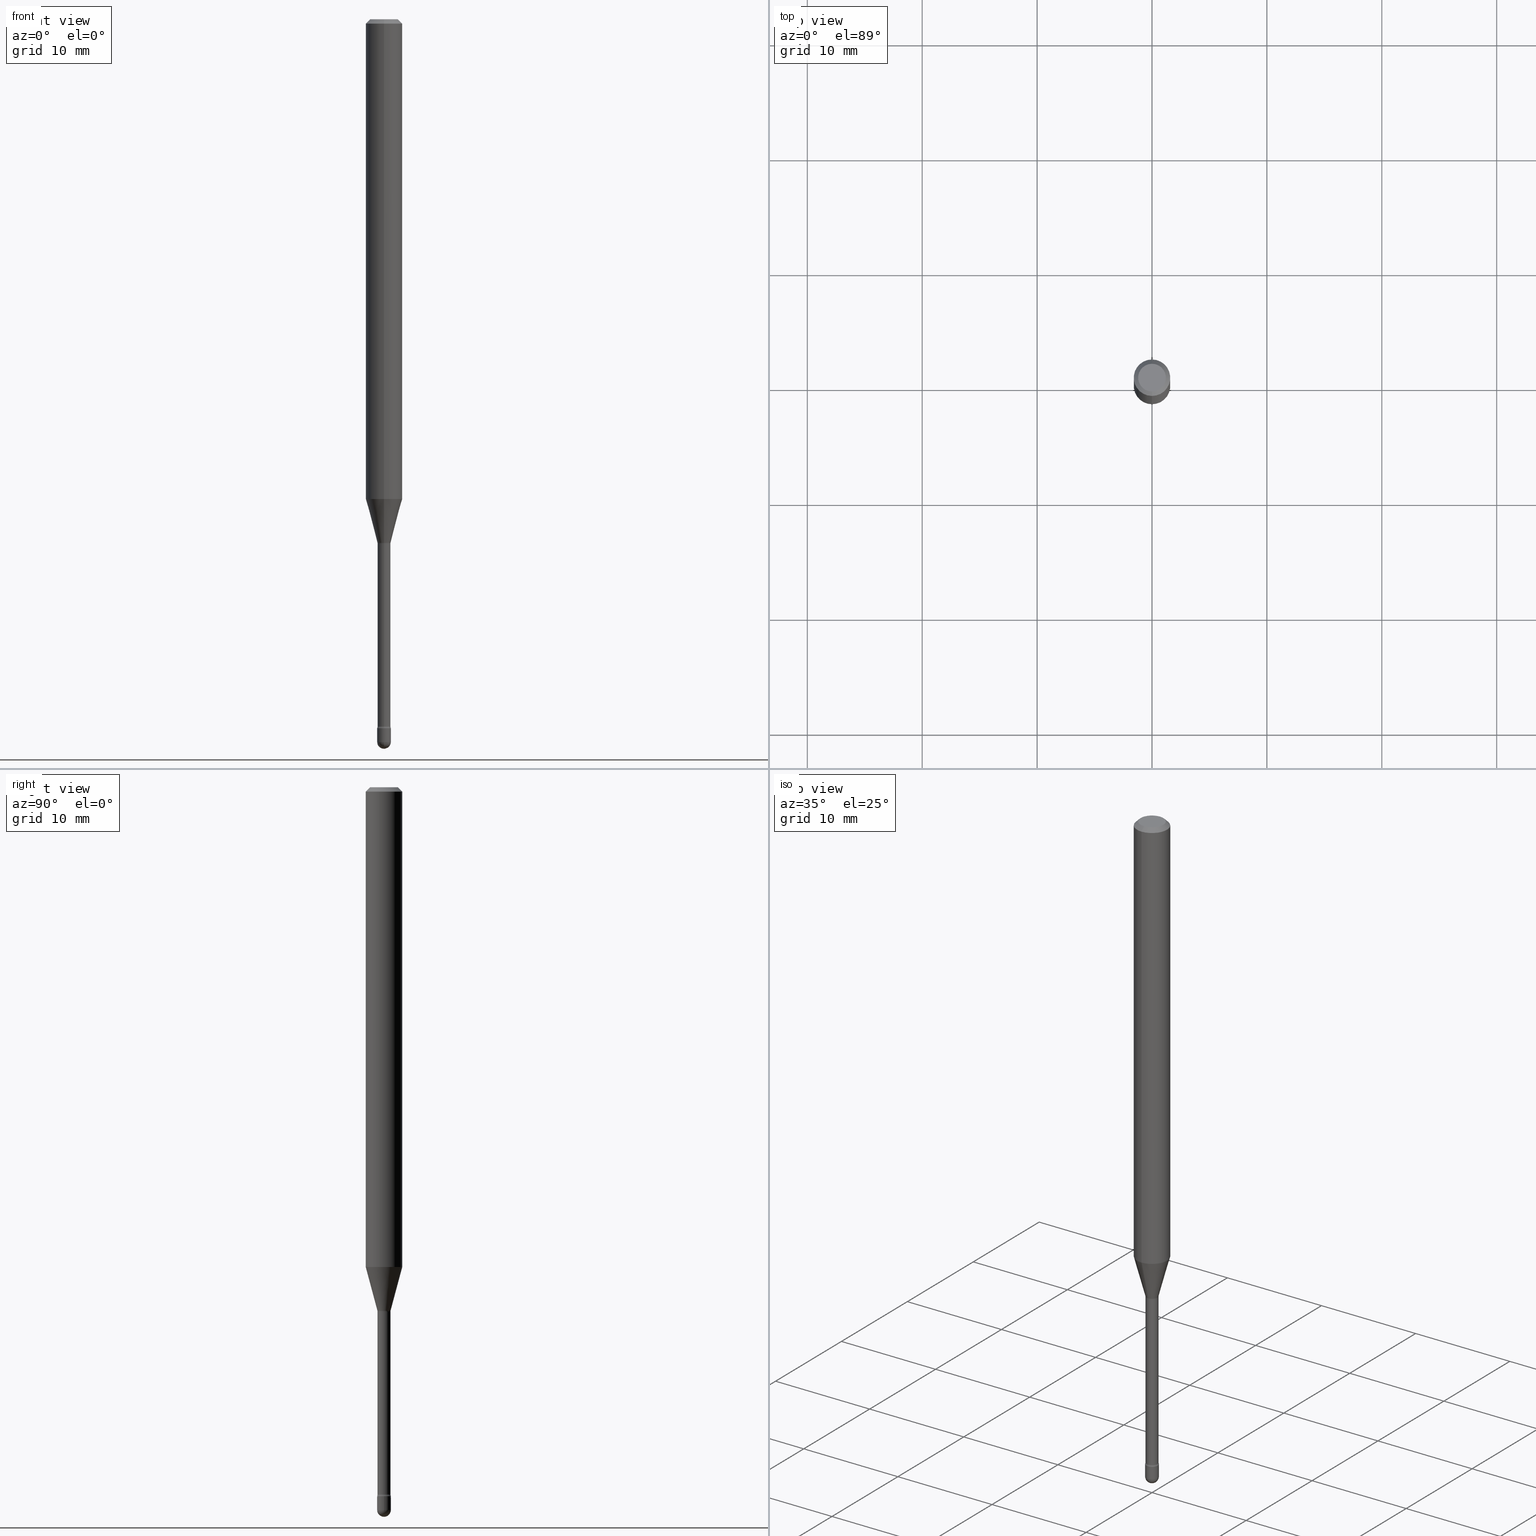
[diagram: canonical four-view strip — front | top / right | iso, engineering-drawing reading convention]
A machine part, canonical four-view strip (front | top / right | iso — engineering-drawing reading convention). The complete STEP part file that produces these views, byte-faithful:
ISO-10303-21;
HEADER;
FILE_DESCRIPTION (( 'STEP AP203' ),
    '1' );
FILE_NAME ('09470.STEP',
    '2024-04-09T23:32:47',
    ( '' ),
    ( '' ),
    'SwSTEP 2.0',
    'SolidWorks 2023',
    '' );
FILE_SCHEMA (( 'CONFIG_CONTROL_DESIGN' ));
ENDSEC;

DATA;
#1 = MANIFOLD_SOLID_BREP ( 'Body-Move/Copy2[2]', #435 ) ;
#2 = CARTESIAN_POINT ( 'NONE',  ( 4.394445788243915811E-29, -6.274103936801524027E-15, -1.796974787463811118 ) ) ;
#3 = DIRECTION ( 'NONE',  ( -2.445456806742390166E-29, 3.491498522728124281E-15, 1.000000000000000000 ) ) ;
#4 = MANIFOLD_SOLID_BREP ( 'Body-Move/Copy2[1]', #192 ) ;
#5 = AXIS2_PLACEMENT_3D ( 'NONE', #197, #108, #373 ) ;
#6 = ADVANCED_FACE ( 'NONE', ( #387 ), #130, .T. ) ;
#7 = DIRECTION ( 'NONE',  ( 1.000000000000000000, -6.982962677686265922E-15, 4.876176775795935793E-29 ) ) ;
#8 = ORIENTED_EDGE ( 'NONE', *, *, #545, .F. ) ;
#9 = FACE_OUTER_BOUND ( 'NONE', #105, .T. ) ;
#10 = CC_DESIGN_DATE_AND_TIME_ASSIGNMENT ( #257, #252, ( #256 ) ) ;
#11 = ORIENTED_EDGE ( 'NONE', *, *, #80, .F. ) ;
#12 = CARTESIAN_POINT ( 'NONE',  ( 4.440892098500625669E-16, 0.06250000000000000000, 2.598547412207382957E-16 ) ) ;
#13 = TOROIDAL_SURFACE ( 'NONE', #546, 0.03710000000000006348, 0.01499999999999999424 ) ;
#14 = VECTOR ( 'NONE', #210, 39.37007874015747433 ) ;
#15 = CARTESIAN_POINT ( 'NONE',  ( -1.169113584055446105E-44, 1.669184350826100908E-30, 4.780733988912460139E-16 ) ) ;
#16 = EDGE_CURVE ( 'NONE', #525, #313, #537, .T. ) ;
#17 = FACE_OUTER_BOUND ( 'NONE', #524, .T. ) ;
#18 = ORIENTED_EDGE ( 'NONE', *, *, #150, .T. ) ;
#19 = DIRECTION ( 'NONE',  ( -2.445456806742390166E-29, 3.491498522728124281E-15, 1.000000000000000000 ) ) ;
#20 = PRODUCT_DEFINITION_SHAPE ( 'NONE', 'NONE',  #415 ) ;
#21 =( CONVERSION_BASED_UNIT ( 'INCH', #534 ) LENGTH_UNIT ( ) NAMED_UNIT ( #470 ) );
#22 = EDGE_CURVE ( 'NONE', #265, #377, #442, .T. ) ;
#23 = LINE ( 'NONE', #370, #14 ) ;
#24 = FACE_OUTER_BOUND ( 'NONE', #421, .T. ) ;
#25 = AXIS2_PLACEMENT_3D ( 'NONE', #216, #503, #200 ) ;
#26 = DIRECTION ( 'NONE',  ( -2.445456806742390166E-29, 3.491498522728124281E-15, 1.000000000000000000 ) ) ;
#27 = ORIENTED_EDGE ( 'NONE', *, *, #199, .F. ) ;
#28 = ORIENTED_EDGE ( 'NONE', *, *, #352, .F. ) ;
#29 = DIRECTION ( 'NONE',  ( 2.445456806742390166E-29, -3.491498522728124281E-15, -1.000000000000000000 ) ) ;
#30 = ORIENTED_EDGE ( 'NONE', *, *, #327, .T. ) ;
#31 = AXIS2_PLACEMENT_3D ( 'NONE', #423, #26, #550 ) ;
#32 = ORIENTED_EDGE ( 'NONE', *, *, #181, .T. ) ;
#33 = FACE_OUTER_BOUND ( 'NONE', #338, .T. ) ;
#34 = FACE_OUTER_BOUND ( 'NONE', #434, .T. ) ;
#35 = AXIS2_PLACEMENT_3D ( 'NONE', #40, #381, #469 ) ;
#36 = CARTESIAN_POINT ( 'NONE',  ( 1.570299446029823742E-16, 0.02210000000000003628, 4.009112815389543820E-16 ) ) ;
#37 = CIRCLE ( 'NONE', #145, 0.02350000000000000352 ) ;
#38 = DIRECTION ( 'NONE',  ( 6.982962677686265922E-15, 1.000000000000000000, -3.491498522728124281E-15 ) ) ;
#39 = LOCAL_TIME ( 19, 32, 47.00000000000000000, #137 ) ;
#40 = CARTESIAN_POINT ( 'NONE',  ( 4.394424225547836862E-29, -6.274134815809582677E-15, -1.796974787463811118 ) ) ;
#41 = DIRECTION ( 'NONE',  ( -2.445456806742389886E-29, 3.491498522728124281E-15, 1.000000000000000000 ) ) ;
#42 = ORIENTED_EDGE ( 'NONE', *, *, #69, .F. ) ;
#43 = DIRECTION ( 'NONE',  ( 1.000000000000000000, -6.982962677686265922E-15, 4.876176775795935793E-29 ) ) ;
#44 = DIRECTION ( 'NONE',  ( -6.982962677686266711E-15, -1.000000000000000000, 3.491498522728124676E-15 ) ) ;
#45 = ADVANCED_FACE ( 'NONE', ( #34 ), #477, .F. ) ;
#46 = PERSON_AND_ORGANIZATION ( #382, #324 ) ;
#47 = LINE ( 'NONE', #483, #320 ) ;
#48 = DIRECTION ( 'NONE',  ( -2.445456806742390166E-29, 3.491498522728124281E-15, 1.000000000000000000 ) ) ;
#49 = ORIENTED_EDGE ( 'NONE', *, *, #486, .T. ) ;
#50 = DIRECTION ( 'NONE',  ( -2.445456806742390166E-29, 3.491498522728124281E-15, 1.000000000000000000 ) ) ;
#51 = EDGE_CURVE ( 'NONE', #173, #335, #311, .T. ) ;
#52 = CONICAL_SURFACE ( 'NONE', #394, 0.06250000000000000000, 0.7853981633974483900 ) ;
#53 = CONICAL_SURFACE ( 'NONE', #148, 0.02261111260566398690, 0.2617993877991501295 ) ;
#54 = FACE_OUTER_BOUND ( 'NONE', #390, .T. ) ;
#55 = EDGE_CURVE ( 'NONE', #392, #259, #240, .T. ) ;
#56 = ORIENTED_EDGE ( 'NONE', *, *, #301, .F. ) ;
#57 = CARTESIAN_POINT ( 'NONE',  ( -1.169113584055446105E-44, 1.669184350826100908E-30, 4.780733988912460139E-16 ) ) ;
#58 = EDGE_CURVE ( 'NONE', #561, #365, #360, .T. ) ;
#59 = DIRECTION ( 'NONE',  ( 1.000000000000000000, -6.982962677686269866E-15, 0.000000000000000000 ) ) ;
#60 = FACE_OUTER_BOUND ( 'NONE', #244, .T. ) ;
#61 = ORIENTED_EDGE ( 'NONE', *, *, #58, .T. ) ;
#62 = AXIS2_PLACEMENT_3D ( 'NONE', #83, #261, #551 ) ;
#63 = CARTESIAN_POINT ( 'NONE',  ( 6.056203498517491033E-29, -8.646653535645050331E-15, -2.476500000000000146 ) ) ;
#64 = FACE_OUTER_BOUND ( 'NONE', #213, .T. ) ;
#65 = FACE_OUTER_BOUND ( 'NONE', #344, .T. ) ;
#66 = AXIS2_PLACEMENT_3D ( 'NONE', #231, #314, #353 ) ;
#67 = ORIENTED_EDGE ( 'NONE', *, *, #511, .F. ) ;
#68 = ORIENTED_EDGE ( 'NONE', *, *, #406, .T. ) ;
#69 = EDGE_CURVE ( 'NONE', #259, #392, #255, .T. ) ;
#70 = DIRECTION ( 'NONE',  ( -2.445456806742390166E-29, 3.491498522728124281E-15, 1.000000000000000000 ) ) ;
#71 = DIRECTION ( 'NONE',  ( -2.445456806742390166E-29, 3.491498522728124281E-15, 1.000000000000000000 ) ) ;
#72 = DIRECTION ( 'NONE',  ( -6.982962677686265922E-15, -1.000000000000000000, 3.491498522728123492E-15 ) ) ;
#73 = PERSON_AND_ORGANIZATION_ROLE ( 'classification_officer' ) ;
#74 = ORIENTED_EDGE ( 'NONE', *, *, #543, .F. ) ;
#75 = AXIS2_PLACEMENT_3D ( 'NONE', #226, #560, #123 ) ;
#76 = MECHANICAL_CONTEXT ( 'NONE', #182, 'mechanical' ) ;
#77 = CARTESIAN_POINT ( 'NONE',  ( 1.620037437533623579E-16, 0.02209999999999160900, -2.422672283192177645 ) ) ;
#78 = COORDINATED_UNIVERSAL_TIME_OFFSET ( 5, 0, .BEHIND. ) ;
#79 = EDGE_LOOP ( 'NONE', ( #168, #163, #91, #334 ) ) ;
#80 = EDGE_CURVE ( 'NONE', #392, #419, #125, .T. ) ;
#81 = CARTESIAN_POINT ( 'NONE',  ( 1.570299446030415881E-16, 0.02209999999999372536, -1.796974787463811118 ) ) ;
#82 = APPROVAL_STATUS ( 'not_yet_approved' ) ;
#83 = CARTESIAN_POINT ( 'NONE',  ( -2.590679153421016779E-16, -0.03710000000000852199, -2.422672283192177645 ) ) ;
#84 = DIRECTION ( 'NONE',  ( 1.000000000000000000, -7.105427357601001070E-15, 4.926315718983979931E-29 ) ) ;
#85 = VECTOR ( 'NONE', #274, 39.37007874015748143 ) ;
#86 = CC_DESIGN_PERSON_AND_ORGANIZATION_ASSIGNMENT ( #124, #73, ( #256 ) ) ;
#87 = DIRECTION ( 'NONE',  ( -2.445456806742390166E-29, 3.491498522728124281E-15, 1.000000000000000000 ) ) ;
#88 = CIRCLE ( 'NONE', #248, 0.02350000000000000352 ) ;
#89 = APPROVAL_ROLE ( '' ) ;
#90 = CARTESIAN_POINT ( 'NONE',  ( 5.940014583577266287E-29, -8.480849911706614347E-15, -2.429000000000000270 ) ) ;
#91 = ORIENTED_EDGE ( 'NONE', *, *, #189, .T. ) ;
#92 = LINE ( 'NONE', #522, #528 ) ;
#93 = EDGE_CURVE ( 'NONE', #504, #194, #92, .T. ) ;
#94 = ORIENTED_EDGE ( 'NONE', *, *, #51, .T. ) ;
#95 = APPROVAL ( #391, 'UNSPECIFIED' ) ;
#96 = DIRECTION ( 'NONE',  ( -2.445468806185136877E-29, 3.491481338843145188E-15, 1.000000000000000000 ) ) ;
#97 = CIRCLE ( 'NONE', #333, 0.02210000000000007098 ) ;
#98 = ORIENTED_EDGE ( 'NONE', *, *, #473, .T. ) ;
#99 = AXIS2_PLACEMENT_3D ( 'NONE', #2, #221, #554 ) ;
#100 = DIRECTION ( 'NONE',  ( -6.982962677686265922E-15, -1.000000000000000000, 0.000000000000000000 ) ) ;
#101 = ADVANCED_FACE ( 'NONE', ( #179 ), #398, .T. ) ;
#102 = DIRECTION ( 'NONE',  ( 1.000000000000000000, -6.982962677686269866E-15, 0.000000000000000000 ) ) ;
#103 = PERSON_AND_ORGANIZATION_ROLE ( 'creator' ) ;
#104 = CYLINDRICAL_SURFACE ( 'NONE', #460, 0.02350000000000000352 ) ;
#105 = EDGE_LOOP ( 'NONE', ( #444, #119, #404, #480 ) ) ;
#106 = CARTESIAN_POINT ( 'NONE',  ( 4.384930263614428569E-29, -6.260579821105140971E-15, -1.793092501787273196 ) ) ;
#107 = AXIS2_PLACEMENT_3D ( 'NONE', #188, #310, #438 ) ;
#108 = DIRECTION ( 'NONE',  ( 0.000000000000000000, 0.000000000000000000, 1.000000000000000000 ) ) ;
#109 = DIRECTION ( 'NONE',  ( -2.445456806742389886E-29, 3.491498522728124281E-15, 1.000000000000000000 ) ) ;
#110 = CARTESIAN_POINT ( 'NONE',  ( 3.668185210113605428E-31, -5.237247784092215166E-17, -0.01500000000000008271 ) ) ;
#111 = ORIENTED_EDGE ( 'NONE', *, *, #150, .F. ) ;
#112 = CARTESIAN_POINT ( 'NONE',  ( -0.02350000000000000699, -8.396753310943903641E-15, -2.476500000000000590 ) ) ;
#113 = DIRECTION ( 'NONE',  ( -6.982962677686265922E-15, -1.000000000000000000, 3.491498522728124676E-15 ) ) ;
#114 =( NAMED_UNIT ( * ) PLANE_ANGLE_UNIT ( ) SI_UNIT ( $, .RADIAN. ) );
#115 = CARTESIAN_POINT ( 'NONE',  ( 6.056203498517492154E-29, -8.646653535645053486E-15, -2.476500000000000590 ) ) ;
#116 = ORIENTED_EDGE ( 'NONE', *, *, #327, .F. ) ;
#117 = AXIS2_PLACEMENT_3D ( 'NONE', #342, #557, #297 ) ;
#118 = ORIENTED_EDGE ( 'NONE', *, *, #481, .T. ) ;
#119 = ORIENTED_EDGE ( 'NONE', *, *, #228, .F. ) ;
#120 = EDGE_CURVE ( 'NONE', #525, #265, #97, .T. ) ;
#121 = CARTESIAN_POINT ( 'NONE',  ( 3.668185210113605428E-31, -5.237247784092215166E-17, -0.01500000000000008271 ) ) ;
#122 = CARTESIAN_POINT ( 'NONE',  ( 4.020881578463291233E-29, -5.740809673089514133E-15, -1.644225147374217988 ) ) ;
#123 = DIRECTION ( 'NONE',  ( 1.000000000000000000, -6.982962677686227268E-15, 0.000000000000000000 ) ) ;
#124 = PERSON_AND_ORGANIZATION ( #382, #324 ) ;
#125 = LINE ( 'NONE', #12, #223 ) ;
#126 = CIRCLE ( 'NONE', #510, 0.02349999999999995148 ) ;
#127 = ORIENTED_EDGE ( 'NONE', *, *, #120, .T. ) ;
#128 = EDGE_CURVE ( 'NONE', #472, #467, #47, .T. ) ;
#129 = CALENDAR_DATE ( 2024, 9, 4 ) ;
#130 = SPHERICAL_SURFACE ( 'NONE', #284, 0.02349999999999995148 ) ;
#131 = COORDINATED_UNIVERSAL_TIME_OFFSET ( 5, 0, .BEHIND. ) ;
#132 = EDGE_LOOP ( 'NONE', ( #478, #515, #506, #209 ) ) ;
#133 = DIRECTION ( 'NONE',  ( -2.445468806185136597E-29, 3.491481338843145583E-15, 1.000000000000000000 ) ) ;
#134 = AXIS2_PLACEMENT_3D ( 'NONE', #306, #430, #183 ) ;
#135 = PERSON_AND_ORGANIZATION ( #382, #324 ) ;
#136 = ADVANCED_FACE ( 'NONE', ( #484 ), #489, .T. ) ;
#137 = COORDINATED_UNIVERSAL_TIME_OFFSET ( 5, 0, .BEHIND. ) ;
#138 = DIRECTION ( 'NONE',  ( -2.445456806742389886E-29, 3.491498522728124281E-15, 1.000000000000000000 ) ) ;
#139 = CC_DESIGN_APPROVAL ( #362, ( #256 ) ) ;
#140 = DIRECTION ( 'NONE',  ( -2.445456806742390166E-29, 3.491498522728124281E-15, 1.000000000000000000 ) ) ;
#141 = ORIENTED_EDGE ( 'NONE', *, *, #562, .T. ) ;
#142 = ORIENTED_EDGE ( 'NONE', *, *, #69, .T. ) ;
#143 = AXIS2_PLACEMENT_3D ( 'NONE', #268, #3, #405 ) ;
#144 = DIRECTION ( 'NONE',  ( -6.982962677686265922E-15, -1.000000000000000000, 3.491498522728124676E-15 ) ) ;
#145 = AXIS2_PLACEMENT_3D ( 'NONE', #267, #48, #232 ) ;
#146 = EDGE_CURVE ( 'NONE', #472, #236, #424, .T. ) ;
#147 = APPLICATION_PROTOCOL_DEFINITION ( 'international standard', 'config_control_design', 1994, #172 ) ;
#148 = AXIS2_PLACEMENT_3D ( 'NONE', #106, #414, #161 ) ;
#149 = CARTESIAN_POINT ( 'NONE',  ( -3.773273898774340269E-16, -0.04749999999999999362, 8.309996399257698746E-17 ) ) ;
#150 = EDGE_CURVE ( 'NONE', #419, #162, #358, .T. ) ;
#151 = DIRECTION ( 'NONE',  ( -6.982962677686265922E-15, -1.000000000000000000, 3.483106191921935554E-15 ) ) ;
#152 = CARTESIAN_POINT ( 'NONE',  ( 1.669775429036828812E-16, 0.02349999999999151726, -2.429000000000000270 ) ) ;
#153 = CIRCLE ( 'NONE', #471, 0.02350000000000000352 ) ;
#154 = ORIENTED_EDGE ( 'NONE', *, *, #396, .F. ) ;
#155 = CONICAL_SURFACE ( 'NONE', #233, 0.02261111260566398690, 0.2617993877991501295 ) ;
#156 = LINE ( 'NONE', #385, #530 ) ;
#157 = CYLINDRICAL_SURFACE ( 'NONE', #555, 0.06250000000000000000 ) ;
#158 = EDGE_CURVE ( 'NONE', #265, #365, #271, .T. ) ;
#159 = ORIENTED_EDGE ( 'NONE', *, *, #181, .F. ) ;
#160 = FACE_OUTER_BOUND ( 'NONE', #304, .T. ) ;
#161 = DIRECTION ( 'NONE',  ( -6.982962677686265922E-15, -1.000000000000000000, 0.000000000000000000 ) ) ;
#162 = VERTEX_POINT ( 'NONE', #527 ) ;
#163 = ORIENTED_EDGE ( 'NONE', *, *, #16, .T. ) ;
#164 = AXIS2_PLACEMENT_3D ( 'NONE', #355, #140, #357 ) ;
#165 = ADVANCED_FACE ( 'NONE', ( #317 ), #104, .T. ) ;
#166 = DIRECTION ( 'NONE',  ( -6.982962677686265922E-15, -1.000000000000000000, 3.491498522728124281E-15 ) ) ;
#167 = CC_DESIGN_APPROVAL ( #95, ( #415 ) ) ;
#168 = ORIENTED_EDGE ( 'NONE', *, *, #120, .F. ) ;
#169 = ORIENTED_EDGE ( 'NONE', *, *, #80, .T. ) ;
#170 = DIRECTION ( 'NONE',  ( 6.982962677686265922E-15, 1.000000000000000000, 0.000000000000000000 ) ) ;
#171 = DIRECTION ( 'NONE',  ( 7.105427357600997914E-15, 1.000000000000000000, 0.000000000000000000 ) ) ;
#172 = APPLICATION_CONTEXT ( 'configuration controlled 3d designs of mechanical parts and assemblies' ) ;
#173 = VERTEX_POINT ( 'NONE', #276 ) ;
#174 = SHAPE_DEFINITION_REPRESENTATION ( #20, #323 ) ;
#175 = PERSON_AND_ORGANIZATION ( #382, #324 ) ;
#176 = DIRECTION ( 'NONE',  ( -2.445456806742390166E-29, 3.491498522728124281E-15, 1.000000000000000000 ) ) ;
#177 = DIRECTION ( 'NONE',  ( -2.445456806742389886E-29, 3.491498522728124281E-15, 1.000000000000000000 ) ) ;
#178 = CARTESIAN_POINT ( 'NONE',  ( 5.940043730223697314E-29, -8.480808172050001970E-15, -2.429000000000000270 ) ) ;
#179 = FACE_OUTER_BOUND ( 'NONE', #341, .T. ) ;
#180 = PERSON_AND_ORGANIZATION_ROLE ( 'design_owner' ) ;
#181 = EDGE_CURVE ( 'NONE', #220, #162, #399, .T. ) ;
#182 = APPLICATION_CONTEXT ( 'configuration controlled 3d designs of mechanical parts and assemblies' ) ;
#183 = DIRECTION ( 'NONE',  ( -6.982962677686265922E-15, -1.000000000000000000, 0.000000000000000000 ) ) ;
#184 = CARTESIAN_POINT ( 'NONE',  ( -0.02350000000000000352, -8.396753310943903641E-15, -2.429000000000000270 ) ) ;
#185 = AXIS2_PLACEMENT_3D ( 'NONE', #121, #29, #379 ) ;
#186 = LINE ( 'NONE', #446, #85 ) ;
#187 = ORIENTED_EDGE ( 'NONE', *, *, #146, .F. ) ;
#188 = CARTESIAN_POINT ( 'NONE',  ( 5.940043730223697314E-29, -8.480808172050001970E-15, -2.429000000000000270 ) ) ;
#189 = EDGE_CURVE ( 'NONE', #313, #377, #37, .T. ) ;
#190 = ORIENTED_EDGE ( 'NONE', *, *, #422, .F. ) ;
#191 = CARTESIAN_POINT ( 'NONE',  ( 6.114676835852627231E-29, -8.727264387118866723E-15, -2.500000000000000000 ) ) ;
#192 = CLOSED_SHELL ( 'NONE', ( #101, #6, #136, #389, #165 ) ) ;
#193 = EDGE_CURVE ( 'NONE', #377, #313, #153, .T. ) ;
#194 = VERTEX_POINT ( 'NONE', #184 ) ;
#195 = AXIS2_PLACEMENT_3D ( 'NONE', #207, #375, #329 ) ;
#196 = DIRECTION ( 'NONE',  ( -2.445468806185136597E-29, 3.491481338843145583E-15, 1.000000000000000000 ) ) ;
#197 = CARTESIAN_POINT ( 'NONE',  ( 0.000000000000000000, 0.000000000000000000, 0.000000000000000000 ) ) ;
#198 = CARTESIAN_POINT ( 'NONE',  ( 5.924569496155794395E-29, -8.458715066898005273E-15, -2.422672283192177645 ) ) ;
#199 = EDGE_CURVE ( 'NONE', #259, #162, #186, .T. ) ;
#200 = DIRECTION ( 'NONE',  ( -6.982962677686265922E-15, -1.000000000000000000, 0.000000000000000000 ) ) ;
#201 = DIRECTION ( 'NONE',  ( -2.445456806742390166E-29, 3.491498522728124281E-15, 1.000000000000000000 ) ) ;
#202 = CC_DESIGN_PERSON_AND_ORGANIZATION_ASSIGNMENT ( #175, #303, ( #415 ) ) ;
#203 = AXIS2_PLACEMENT_3D ( 'NONE', #57, #19, #535 ) ;
#204 = EDGE_LOOP ( 'NONE', ( #212, #331, #420, #251, #67 ) ) ;
#205 = APPLICATION_PROTOCOL_DEFINITION ( 'international standard', 'config_control_design', 1994, #182 ) ;
#206 = CARTESIAN_POINT ( 'NONE',  ( -1.169113584055446105E-44, 1.669184350826100908E-30, 4.780733988912460139E-16 ) ) ;
#207 = CARTESIAN_POINT ( 'NONE',  ( 6.056203498517491033E-29, -8.646653535645050331E-15, -2.476500000000000146 ) ) ;
#208 = ORIENTED_EDGE ( 'NONE', *, *, #369, .F. ) ;
#209 = ORIENTED_EDGE ( 'NONE', *, *, #523, .F. ) ;
#210 = DIRECTION ( 'NONE',  ( 1.839019923739599526E-15, 0.2588190451025248473, 0.9659258262890673130 ) ) ;
#211 = ADVANCED_FACE ( 'NONE', ( #403 ), #443, .T. ) ;
#212 = ORIENTED_EDGE ( 'NONE', *, *, #93, .F. ) ;
#213 = EDGE_LOOP ( 'NONE', ( #295, #222 ) ) ;
#214 = AXIS2_PLACEMENT_3D ( 'NONE', #499, #452, #151 ) ;
#215 = UNCERTAINTY_MEASURE_WITH_UNIT (LENGTH_MEASURE( 1.000000000000000082E-05 ), #21, 'distance_accuracy_value', 'NONE');
#216 = CARTESIAN_POINT ( 'NONE',  ( 4.394424225547836862E-29, -6.274134815809582677E-15, -1.796974787463811118 ) ) ;
#217 = CIRCLE ( 'NONE', #474, 0.04749999999999999362 ) ;
#218 = VERTEX_POINT ( 'NONE', #191 ) ;
#219 = APPROVAL_DATE_TIME ( #302, #362 ) ;
#220 = VERTEX_POINT ( 'NONE', #149 ) ;
#221 = DIRECTION ( 'NONE',  ( -2.445456806742390166E-29, 3.491498522728124281E-15, 1.000000000000000000 ) ) ;
#222 = ORIENTED_EDGE ( 'NONE', *, *, #189, .F. ) ;
#223 = VECTOR ( 'NONE', #138, 39.37007874015748143 ) ;
#224 = TOROIDAL_SURFACE ( 'NONE', #31, 0.03710000000000000103, 0.01500000000000002373 ) ;
#225 = ORIENTED_EDGE ( 'NONE', *, *, #55, .F. ) ;
#226 = CARTESIAN_POINT ( 'NONE',  ( 6.056203498517492154E-29, -8.646653535645053486E-15, -2.476500000000000590 ) ) ;
#227 = DIRECTION ( 'NONE',  ( -2.445456806742390166E-29, 3.491498522728124281E-15, 1.000000000000000000 ) ) ;
#228 = EDGE_CURVE ( 'NONE', #265, #525, #296, .T. ) ;
#229 = CARTESIAN_POINT ( 'NONE',  ( 0.000000000000000000, 0.000000000000000000, 0.000000000000000000 ) ) ;
#230 = AXIS2_PLACEMENT_3D ( 'NONE', #262, #254, #38 ) ;
#231 = CARTESIAN_POINT ( 'NONE',  ( -2.590679153421165676E-16, -0.03710000000000628073, -1.796974787463811118 ) ) ;
#232 = DIRECTION ( 'NONE',  ( -6.982962677686265922E-15, -1.000000000000000000, 0.000000000000000000 ) ) ;
#233 = AXIS2_PLACEMENT_3D ( 'NONE', #363, #496, #411 ) ;
#234 = ADVANCED_FACE ( 'NONE', ( #9 ), #13, .F. ) ;
#235 = DIRECTION ( 'NONE',  ( 1.000000000000000000, -6.982962677686227268E-15, 0.000000000000000000 ) ) ;
#236 = VERTEX_POINT ( 'NONE', #315 ) ;
#237 = CARTESIAN_POINT ( 'NONE',  ( -1.169113584055446105E-44, 1.669184350826100908E-30, 4.780733988912460139E-16 ) ) ;
#238 = CARTESIAN_POINT ( 'NONE',  ( 4.440892098501030453E-16, 0.06249999999999995143, -0.01500000000000030129 ) ) ;
#239 = CYLINDRICAL_SURFACE ( 'NONE', #203, 0.02210000000000003628 ) ;
#240 = CIRCLE ( 'NONE', #388, 0.06250000000000000000 ) ;
#241 = PRODUCT_DEFINITION_FORMATION_WITH_SPECIFIED_SOURCE ( 'ANY', '', #552, .NOT_KNOWN. ) ;
#242 = ORIENTED_EDGE ( 'NONE', *, *, #445, .F. ) ;
#243 = DIRECTION ( 'NONE',  ( -6.982962677686265922E-15, -1.000000000000000000, 3.491498522728124281E-15 ) ) ;
#244 = EDGE_LOOP ( 'NONE', ( #208, #32, #30, #242 ) ) ;
#245 = CYLINDRICAL_SURFACE ( 'NONE', #436, 0.02210000000000003628 ) ;
#246 = DIRECTION ( 'NONE',  ( 6.982962677686265922E-15, 1.000000000000000000, -3.483106191921935554E-15 ) ) ;
#247 = CIRCLE ( 'NONE', #513, 0.02350000000000000699 ) ;
#248 = AXIS2_PLACEMENT_3D ( 'NONE', #282, #458, #59 ) ;
#249 = DIRECTION ( 'NONE',  ( 4.937700262164548042E-15, 0.7071067811865451302, -0.7071067811865499042 ) ) ;
#250 = DIRECTION ( 'NONE',  ( -2.445456806742390166E-29, 3.491498522728124281E-15, 1.000000000000000000 ) ) ;
#251 = ORIENTED_EDGE ( 'NONE', *, *, #128, .T. ) ;
#252 = DATE_TIME_ROLE ( 'classification_date' ) ;
#253 = CARTESIAN_POINT ( 'NONE',  ( 4.364351673553919652E-16, 0.06249999999999995143, -0.01500000000000030129 ) ) ;
#254 = DIRECTION ( 'NONE',  ( 2.445456806742389886E-29, -3.491498522728124281E-15, -1.000000000000000000 ) ) ;
#255 = CIRCLE ( 'NONE', #485, 0.06250000000000000000 ) ;
#256 = SECURITY_CLASSIFICATION ( '', '', #290 ) ;
#257 = DATE_AND_TIME ( #380, #417 ) ;
#258 = CIRCLE ( 'NONE', #336, 0.02350000000000000699 ) ;
#259 = VERTEX_POINT ( 'NONE', #407 ) ;
#260 = ADVANCED_FACE ( 'NONE', ( #17 ), #239, .T. ) ;
#261 = DIRECTION ( 'NONE',  ( -1.000000000000000000, 6.982962677686265922E-15, -4.883557194083112340E-29 ) ) ;
#262 = CARTESIAN_POINT ( 'NONE',  ( 3.316907271900976096E-16, 0.04749999999999999362, 3.181741169753270705E-17 ) ) ;
#263 = AXIS2_PLACEMENT_3D ( 'NONE', #237, #351, #144 ) ;
#264 = CALENDAR_DATE ( 2024, 9, 4 ) ;
#265 = VERTEX_POINT ( 'NONE', #322 ) ;
#266 = CALENDAR_DATE ( 2024, 9, 4 ) ;
#267 = CARTESIAN_POINT ( 'NONE',  ( 5.940014583577266287E-29, -8.480849911706614347E-15, -2.429000000000000270 ) ) ;
#268 = CARTESIAN_POINT ( 'NONE',  ( 3.668185210113605428E-31, -5.237247784092215166E-17, -0.01500000000000008271 ) ) ;
#269 = EDGE_CURVE ( 'NONE', #218, #236, #126, .T. ) ;
#270 = TOROIDAL_SURFACE ( 'NONE', #412, 0.03710000000000006348, 0.01499999999999999424 ) ;
#271 = LINE ( 'NONE', #492, #393 ) ;
#272 = VECTOR ( 'NONE', #249, 39.37007874015748143 ) ;
#273 = ORIENTED_EDGE ( 'NONE', *, *, #523, .T. ) ;
#274 = DIRECTION ( 'NONE',  ( -2.445456806742389886E-29, 3.491498522728124281E-15, 1.000000000000000000 ) ) ;
#275 = PERSON_AND_ORGANIZATION ( #382, #324 ) ;
#276 = CARTESIAN_POINT ( 'NONE',  ( -1.578925554262692203E-16, -0.02261111260567024925, -1.793092501787273196 ) ) ;
#277 = FACE_OUTER_BOUND ( 'NONE', #79, .T. ) ;
#278 = ADVANCED_FACE ( 'NONE', ( #277 ), #270, .F. ) ;
#279 = EDGE_LOOP ( 'NONE', ( #68, #283 ) ) ;
#280 = CARTESIAN_POINT ( 'NONE',  ( 1.640996229256866630E-16, 0.02349999999999152073, -2.429000000000000270 ) ) ;
#281 = DIRECTION ( 'NONE',  ( 2.445456806742390166E-29, -3.491498522728124281E-15, -1.000000000000000000 ) ) ;
#282 = CARTESIAN_POINT ( 'NONE',  ( 5.940043730223697314E-29, -8.480808172050001970E-15, -2.429000000000000270 ) ) ;
#283 = ORIENTED_EDGE ( 'NONE', *, *, #511, .T. ) ;
#284 = AXIS2_PLACEMENT_3D ( 'NONE', #508, #553, #170 ) ;
#285 = CARTESIAN_POINT ( 'NONE',  ( 2.023465601364097511E-45, -2.889165055145571576E-31, -8.274621583700891195E-17 ) ) ;
#286 = AXIS2_PLACEMENT_3D ( 'NONE', #229, #309, #7 ) ;
#287 = ORIENTED_EDGE ( 'NONE', *, *, #228, .T. ) ;
#288 =( GEOMETRIC_REPRESENTATION_CONTEXT ( 3 ) GLOBAL_UNCERTAINTY_ASSIGNED_CONTEXT ( ( #215 ) ) GLOBAL_UNIT_ASSIGNED_CONTEXT ( ( #21, #114, #367 ) ) REPRESENTATION_CONTEXT ( 'NONE', 'WORKASPACE' ) );
#289 = DIRECTION ( 'NONE',  ( -1.807323732225328562E-15, -0.2588190451025179639, 0.9659258262890689783 ) ) ;
#290 = SECURITY_CLASSIFICATION_LEVEL ( 'unclassified' ) ;
#291 = LOCAL_TIME ( 19, 32, 47.00000000000000000, #78 ) ;
#292 = ORIENTED_EDGE ( 'NONE', *, *, #406, .F. ) ;
#293 = CARTESIAN_POINT ( 'NONE',  ( 4.020881578463291233E-29, -5.740809673089514133E-15, -1.644225147374217988 ) ) ;
#294 = ADVANCED_FACE ( 'NONE', ( #65 ), #157, .T. ) ;
#295 = ORIENTED_EDGE ( 'NONE', *, *, #193, .F. ) ;
#296 = CIRCLE ( 'NONE', #164, 0.02210000000000007098 ) ;
#297 = DIRECTION ( 'NONE',  ( 7.105427357601001859E-15, 1.000000000000000000, 0.000000000000000000 ) ) ;
#298 = DATE_TIME_ROLE ( 'creation_date' ) ;
#299 = VERTEX_POINT ( 'NONE', #459 ) ;
#300 = DESIGN_CONTEXT ( 'detailed design', #172, 'design' ) ;
#301 = EDGE_CURVE ( 'NONE', #299, #472, #247, .T. ) ;
#302 = DATE_AND_TIME ( #395, #291 ) ;
#303 = PERSON_AND_ORGANIZATION_ROLE ( 'creator' ) ;
#304 = EDGE_LOOP ( 'NONE', ( #425, #127, #330, #428 ) ) ;
#305 = AXIS2_PLACEMENT_3D ( 'NONE', #348, #84, #171 ) ;
#306 = CARTESIAN_POINT ( 'NONE',  ( 4.384930263614428569E-29, -6.260579821105140971E-15, -1.793092501787273196 ) ) ;
#307 = LOCAL_TIME ( 19, 32, 47.00000000000000000, #131 ) ;
#308 = CARTESIAN_POINT ( 'NONE',  ( 0.000000000000000000, 0.000000000000000000, 0.000000000000000000 ) ) ;
#309 = DIRECTION ( 'NONE',  ( -2.445468806185136597E-29, 3.491481338843145583E-15, 1.000000000000000000 ) ) ;
#310 = DIRECTION ( 'NONE',  ( -2.438088387897960049E-29, 3.491481338843145188E-15, 1.000000000000000000 ) ) ;
#311 = CIRCLE ( 'NONE', #368, 0.02261111260566398690 ) ;
#312 = DIRECTION ( 'NONE',  ( 6.982962677686265922E-15, 1.000000000000000000, 0.000000000000000000 ) ) ;
#313 = VERTEX_POINT ( 'NONE', #152 ) ;
#314 = DIRECTION ( 'NONE',  ( -1.000000000000000000, 6.982962677686265922E-15, -4.883557194083112340E-29 ) ) ;
#315 = CARTESIAN_POINT ( 'NONE',  ( 1.640996229256876491E-16, 0.02349999999999132991, -2.476500000000000590 ) ) ;
#316 = CIRCLE ( 'NONE', #488, 0.02350000000000000352 ) ;
#317 = FACE_OUTER_BOUND ( 'NONE', #204, .T. ) ;
#318 = DIRECTION ( 'NONE',  ( -6.982962677686266711E-15, -1.000000000000000000, 3.491498522728124676E-15 ) ) ;
#319 = ADVANCED_FACE ( 'NONE', ( #326 ), #155, .T. ) ;
#320 = VECTOR ( 'NONE', #96, 39.37007874015748143 ) ;
#321 = DIRECTION ( 'NONE',  ( -2.445468806185136597E-29, 3.491481338843145583E-15, 1.000000000000000000 ) ) ;
#322 = CARTESIAN_POINT ( 'NONE',  ( -1.543234751768077413E-16, -0.02210000000000852949, -2.422672283192177645 ) ) ;
#323 = ADVANCED_BREP_SHAPE_REPRESENTATION ( '09470', ( #4, #1, #5 ), #288 ) ;
#324 = ORGANIZATION ( 'UNSPECIFIED', 'UNSPECIFIED', '' ) ;
#325 = DIRECTION ( 'NONE',  ( -2.445468806185136597E-29, 3.491481338843145583E-15, 1.000000000000000000 ) ) ;
#326 = FACE_OUTER_BOUND ( 'NONE', #361, .T. ) ;
#327 = EDGE_CURVE ( 'NONE', #162, #419, #558, .T. ) ;
#328 = CARTESIAN_POINT ( 'NONE',  ( 0.02350000000000000699, -8.727830476773153796E-15, -2.476500000000000590 ) ) ;
#329 = DIRECTION ( 'NONE',  ( -7.105427357601001070E-15, -1.000000000000000000, 0.000000000000000000 ) ) ;
#330 = ORIENTED_EDGE ( 'NONE', *, *, #158, .T. ) ;
#331 = ORIENTED_EDGE ( 'NONE', *, *, #490, .T. ) ;
#332 = LINE ( 'NONE', #253, #272 ) ;
#333 = AXIS2_PLACEMENT_3D ( 'NONE', #566, #349, #520 ) ;
#334 = ORIENTED_EDGE ( 'NONE', *, *, #22, .F. ) ;
#335 = VERTEX_POINT ( 'NONE', #371 ) ;
#336 = AXIS2_PLACEMENT_3D ( 'NONE', #464, #325, #498 ) ;
#337 = APPROVAL_STATUS ( 'not_yet_approved' ) ;
#338 = EDGE_LOOP ( 'NONE', ( #74, #487, #61, #190 ) ) ;
#339 = ADVANCED_FACE ( 'NONE', ( #60 ), #52, .T. ) ;
#340 = CC_DESIGN_PERSON_AND_ORGANIZATION_ASSIGNMENT ( #46, #103, ( #241 ) ) ;
#341 = EDGE_LOOP ( 'NONE', ( #273, #507, #292, #493, #529 ) ) ;
#342 = CARTESIAN_POINT ( 'NONE',  ( 2.636113549670568339E-16, 0.03709999999999160497, -2.422672283192177645 ) ) ;
#343 = CIRCLE ( 'NONE', #75, 0.02350000000000000699 ) ;
#344 = EDGE_LOOP ( 'NONE', ( #11, #450, #409, #111 ) ) ;
#345 = ADVANCED_FACE ( 'NONE', ( #24 ), #53, .T. ) ;
#346 = DATE_AND_TIME ( #129, #479 ) ;
#347 = DIRECTION ( 'NONE',  ( -6.982962677686265922E-15, -1.000000000000000000, 0.000000000000000000 ) ) ;
#348 = CARTESIAN_POINT ( 'NONE',  ( 2.636113549670411060E-16, 0.03709999999999372827, -1.796974787463811118 ) ) ;
#349 = DIRECTION ( 'NONE',  ( -2.445456806742390166E-29, 3.491498522728124281E-15, 1.000000000000000000 ) ) ;
#350 = CIRCLE ( 'NONE', #25, 0.02210000000000000159 ) ;
#351 = DIRECTION ( 'NONE',  ( -2.445456806742390166E-29, 3.491498522728124281E-15, 1.000000000000000000 ) ) ;
#352 = EDGE_CURVE ( 'NONE', #218, #299, #383, .T. ) ;
#353 = DIRECTION ( 'NONE',  ( -6.982962677686263555E-15, -1.000000000000000000, 0.000000000000000000 ) ) ;
#354 = DATE_AND_TIME ( #266, #39 ) ;
#355 = CARTESIAN_POINT ( 'NONE',  ( 5.924540425438438156E-29, -8.458756697819860632E-15, -2.422672283192177645 ) ) ;
#356 = CC_DESIGN_PERSON_AND_ORGANIZATION_ASSIGNMENT ( #275, #418, ( #241 ) ) ;
#357 = DIRECTION ( 'NONE',  ( -6.982962677686265133E-15, -1.000000000000000000, 0.000000000000000000 ) ) ;
#358 = CIRCLE ( 'NONE', #143, 0.06250000000000000000 ) ;
#359 = EDGE_LOOP ( 'NONE', ( #8, #542, #516, #98 ) ) ;
#360 = CIRCLE ( 'NONE', #35, 0.02210000000000000159 ) ;
#361 = EDGE_LOOP ( 'NONE', ( #475, #372, #49, #225 ) ) ;
#362 = APPROVAL ( #337, 'UNSPECIFIED' ) ;
#363 = CARTESIAN_POINT ( 'NONE',  ( 4.384930263614428569E-29, -6.260579821105140971E-15, -1.793092501787273196 ) ) ;
#364 = CARTESIAN_POINT ( 'NONE',  ( 2.023465601364097511E-45, -2.889165055145571576E-31, -8.274621583700891195E-17 ) ) ;
#365 = VERTEX_POINT ( 'NONE', #501 ) ;
#366 = DIRECTION ( 'NONE',  ( 1.000000000000000000, -6.982962677686227268E-15, 0.000000000000000000 ) ) ;
#367 =( NAMED_UNIT ( * ) SI_UNIT ( $, .STERADIAN. ) SOLID_ANGLE_UNIT ( ) );
#368 = AXIS2_PLACEMENT_3D ( 'NONE', #397, #176, #347 ) ;
#369 = EDGE_CURVE ( 'NONE', #220, #495, #217, .T. ) ;
#370 = CARTESIAN_POINT ( 'NONE',  ( 1.606616180941255974E-16, 0.02261111260565772454, -1.793092501787273196 ) ) ;
#371 = CARTESIAN_POINT ( 'NONE',  ( 3.023754139721142721E-16, 0.02261111260565773148, -1.793092501787273196 ) ) ;
#372 = ORIENTED_EDGE ( 'NONE', *, *, #543, .T. ) ;
#373 = DIRECTION ( 'NONE',  ( 1.000000000000000000, 0.000000000000000000, 0.000000000000000000 ) ) ;
#374 = APPROVAL_PERSON_ORGANIZATION ( #548, #362, #440 ) ;
#375 = DIRECTION ( 'NONE',  ( -1.000000000000000000, 7.105427357601001070E-15, -4.926315508542082329E-29 ) ) ;
#376 = EDGE_LOOP ( 'NONE', ( #142, #169, #116, #27 ) ) ;
#377 = VERTEX_POINT ( 'NONE', #494 ) ;
#378 =( LENGTH_UNIT ( ) NAMED_UNIT ( * ) SI_UNIT ( $, .METRE. ) );
#379 = DIRECTION ( 'NONE',  ( 6.982962677686265922E-15, 1.000000000000000000, -3.483106191921935554E-15 ) ) ;
#380 = CALENDAR_DATE ( 2024, 9, 4 ) ;
#381 = DIRECTION ( 'NONE',  ( -2.445456806742390166E-29, 3.491498522728124281E-15, 1.000000000000000000 ) ) ;
#382 = PERSON ( 'UNSPECIFIED', 'UNSPECIFIED', 'UNSPECIFIED', ('UNSPECIFIED'), ('UNSPECIFIED'), ('UNSPECIFIED') ) ;
#383 = CIRCLE ( 'NONE', #195, 0.02349999999999995148 ) ;
#384 = CIRCLE ( 'NONE', #451, 0.04749999999999999362 ) ;
#385 = CARTESIAN_POINT ( 'NONE',  ( -1.578925554262692203E-16, -0.02261111260567024925, -1.793092501787273196 ) ) ;
#386 = ORIENTED_EDGE ( 'NONE', *, *, #269, .T. ) ;
#387 = FACE_OUTER_BOUND ( 'NONE', #132, .T. ) ;
#388 = AXIS2_PLACEMENT_3D ( 'NONE', #122, #87, #437 ) ;
#389 = ADVANCED_FACE ( 'NONE', ( #54 ), #526, .T. ) ;
#390 = EDGE_LOOP ( 'NONE', ( #28, #386, #187, #56 ) ) ;
#391 = APPROVAL_STATUS ( 'not_yet_approved' ) ;
#392 = VERTEX_POINT ( 'NONE', #408 ) ;
#393 = VECTOR ( 'NONE', #41, 39.37007874015748143 ) ;
#394 = AXIS2_PLACEMENT_3D ( 'NONE', #110, #281, #246 ) ;
#395 = CALENDAR_DATE ( 2024, 9, 4 ) ;
#396 = EDGE_CURVE ( 'NONE', #495, #220, #384, .T. ) ;
#397 = CARTESIAN_POINT ( 'NONE',  ( 4.384930263614428569E-29, -6.260579821105140971E-15, -1.793092501787273196 ) ) ;
#398 = CYLINDRICAL_SURFACE ( 'NONE', #286, 0.02350000000000000352 ) ;
#399 = LINE ( 'NONE', #448, #400 ) ;
#400 = VECTOR ( 'NONE', #482, 39.37007874015748143 ) ;
#401 = CIRCLE ( 'NONE', #134, 0.02261111260566398690 ) ;
#402 = DIRECTION ( 'NONE',  ( -2.445468806185136877E-29, 3.491481338843145188E-15, 1.000000000000000000 ) ) ;
#403 = FACE_OUTER_BOUND ( 'NONE', #376, .T. ) ;
#404 = ORIENTED_EDGE ( 'NONE', *, *, #22, .T. ) ;
#405 = DIRECTION ( 'NONE',  ( -6.982962677686265922E-15, -1.000000000000000000, 3.483106191921935554E-15 ) ) ;
#406 = EDGE_CURVE ( 'NONE', #467, #194, #316, .T. ) ;
#407 = CARTESIAN_POINT ( 'NONE',  ( -4.364351673553515854E-16, -0.06250000000000575928, -1.644225147374217544 ) ) ;
#408 = CARTESIAN_POINT ( 'NONE',  ( 4.440892098501025523E-16, 0.06249999999999423378, -1.644225147374218210 ) ) ;
#409 = ORIENTED_EDGE ( 'NONE', *, *, #199, .T. ) ;
#410 = FACE_OUTER_BOUND ( 'NONE', #539, .T. ) ;
#411 = DIRECTION ( 'NONE',  ( -6.982962677686265922E-15, -1.000000000000000000, 0.000000000000000000 ) ) ;
#412 = AXIS2_PLACEMENT_3D ( 'NONE', #198, #201, #538 ) ;
#413 = CARTESIAN_POINT ( 'NONE',  ( 0.02350000000000000352, -8.644907794975628038E-15, -2.429000000000000270 ) ) ;
#414 = DIRECTION ( 'NONE',  ( -2.445456806742390166E-29, 3.491498522728124281E-15, 1.000000000000000000 ) ) ;
#415 = PRODUCT_DEFINITION ( 'UNKNOWN', '', #241, #300 ) ;
#416 = APPROVAL_PERSON_ORGANIZATION ( #521, #95, #89 ) ;
#417 = LOCAL_TIME ( 19, 32, 47.00000000000000000, #465 ) ;
#418 = PERSON_AND_ORGANIZATION_ROLE ( 'design_supplier' ) ;
#419 = VERTEX_POINT ( 'NONE', #238 ) ;
#420 = ORIENTED_EDGE ( 'NONE', *, *, #301, .T. ) ;
#421 = EDGE_LOOP ( 'NONE', ( #94, #118, #42, #544 ) ) ;
#422 = EDGE_CURVE ( 'NONE', #173, #365, #505, .T. ) ;
#423 = CARTESIAN_POINT ( 'NONE',  ( 4.394445788243915811E-29, -6.274103936801524027E-15, -1.796974787463811118 ) ) ;
#424 = CIRCLE ( 'NONE', #502, 0.02350000000000000699 ) ;
#425 = ORIENTED_EDGE ( 'NONE', *, *, #562, .F. ) ;
#426 = CC_DESIGN_APPROVAL ( #466, ( #241 ) ) ;
#427 = TOROIDAL_SURFACE ( 'NONE', #99, 0.03710000000000000103, 0.01500000000000002373 ) ;
#428 = ORIENTED_EDGE ( 'NONE', *, *, #58, .F. ) ;
#429 = ADVANCED_FACE ( 'NONE', ( #64 ), #468, .F. ) ;
#430 = DIRECTION ( 'NONE',  ( -2.445456806742390166E-29, 3.491498522728124281E-15, 1.000000000000000000 ) ) ;
#431 = ORIENTED_EDGE ( 'NONE', *, *, #369, .T. ) ;
#432 = LINE ( 'NONE', #36, #497 ) ;
#433 = APPROVAL_ROLE ( '' ) ;
#434 = EDGE_LOOP ( 'NONE', ( #512, #431 ) ) ;
#435 = CLOSED_SHELL ( 'NONE', ( #533, #260, #278, #339, #211, #345, #319, #294, #457, #45, #429, #234, #517, #447 ) ) ;
#436 = AXIS2_PLACEMENT_3D ( 'NONE', #206, #540, #72 ) ;
#437 = DIRECTION ( 'NONE',  ( -6.982962677686265922E-15, -1.000000000000000000, 4.370956789862821150E-15 ) ) ;
#438 = DIRECTION ( 'NONE',  ( 1.000000000000000000, -6.982962677686265922E-15, 4.876176775795935793E-29 ) ) ;
#439 = CC_DESIGN_DATE_AND_TIME_ASSIGNMENT ( #346, #298, ( #415 ) ) ;
#440 = APPROVAL_ROLE ( '' ) ;
#441 = DIRECTION ( 'NONE',  ( -2.445468806185136597E-29, 3.491481338843145583E-15, 1.000000000000000000 ) ) ;
#442 = CIRCLE ( 'NONE', #62, 0.01499999999999999424 ) ;
#443 = CYLINDRICAL_SURFACE ( 'NONE', #263, 0.06250000000000000000 ) ;
#444 = ORIENTED_EDGE ( 'NONE', *, *, #16, .F. ) ;
#445 = EDGE_CURVE ( 'NONE', #495, #419, #332, .T. ) ;
#446 = CARTESIAN_POINT ( 'NONE',  ( -4.364351673553916201E-16, -0.06250000000000000000, 6.962920565617538308E-16 ) ) ;
#447 = ADVANCED_FACE ( 'NONE', ( #455 ), #224, .F. ) ;
#448 = CARTESIAN_POINT ( 'NONE',  ( -4.287811248607203282E-16, -0.06250000000000005551, -0.01499999999999986587 ) ) ;
#449 = PRODUCT_RELATED_PRODUCT_CATEGORY ( 'detail', '', ( #552 ) ) ;
#450 = ORIENTED_EDGE ( 'NONE', *, *, #55, .T. ) ;
#451 = AXIS2_PLACEMENT_3D ( 'NONE', #364, #71, #44 ) ;
#452 = DIRECTION ( 'NONE',  ( -2.445456806742390166E-29, 3.491498522728124281E-15, 1.000000000000000000 ) ) ;
#453 = CIRCLE ( 'NONE', #305, 0.01500000000000002720 ) ;
#454 = ORIENTED_EDGE ( 'NONE', *, *, #473, .F. ) ;
#455 = FACE_OUTER_BOUND ( 'NONE', #359, .T. ) ;
#456 = DIRECTION ( 'NONE',  ( 1.000000000000000000, -6.982962677686265922E-15, 4.883557194083112340E-29 ) ) ;
#457 = ADVANCED_FACE ( 'NONE', ( #410 ), #547, .T. ) ;
#458 = DIRECTION ( 'NONE',  ( -2.445468806185136597E-29, 3.491481338843145583E-15, 1.000000000000000000 ) ) ;
#459 = CARTESIAN_POINT ( 'NONE',  ( -1.669775429035627771E-16, -0.02350000000000862510, -2.476500000000000590 ) ) ;
#460 = AXIS2_PLACEMENT_3D ( 'NONE', #308, #441, #43 ) ;
#461 = ORIENTED_EDGE ( 'NONE', *, *, #158, .F. ) ;
#462 = DIRECTION ( 'NONE',  ( 6.982962677686265922E-15, 1.000000000000000000, 0.000000000000000000 ) ) ;
#463 = AXIS2_PLACEMENT_3D ( 'NONE', #63, #559, #312 ) ;
#464 = CARTESIAN_POINT ( 'NONE',  ( 6.056203498517492154E-29, -8.646653535645053486E-15, -2.476500000000000590 ) ) ;
#465 = COORDINATED_UNIVERSAL_TIME_OFFSET ( 5, 0, .BEHIND. ) ;
#466 = APPROVAL ( #82, 'UNSPECIFIED' ) ;
#467 = VERTEX_POINT ( 'NONE', #413 ) ;
#468 = PLANE ( 'NONE',  #519 ) ;
#469 = DIRECTION ( 'NONE',  ( -6.982962677686265922E-15, -1.000000000000000000, 0.000000000000000000 ) ) ;
#470 = DIMENSIONAL_EXPONENTS ( 1.000000000000000000, 0.000000000000000000, 0.000000000000000000, 0.000000000000000000, 0.000000000000000000, 0.000000000000000000, 0.000000000000000000 ) ;
#471 = AXIS2_PLACEMENT_3D ( 'NONE', #90, #227, #100 ) ;
#472 = VERTEX_POINT ( 'NONE', #328 ) ;
#473 = EDGE_CURVE ( 'NONE', #365, #561, #350, .T. ) ;
#474 = AXIS2_PLACEMENT_3D ( 'NONE', #285, #50, #318 ) ;
#475 = ORIENTED_EDGE ( 'NONE', *, *, #481, .F. ) ;
#476 = PERSON_AND_ORGANIZATION ( #382, #324 ) ;
#477 = PLANE ( 'NONE',  #230 ) ;
#478 = ORIENTED_EDGE ( 'NONE', *, *, #269, .F. ) ;
#479 = LOCAL_TIME ( 19, 32, 47.00000000000000000, #514 ) ;
#480 = ORIENTED_EDGE ( 'NONE', *, *, #193, .T. ) ;
#481 = EDGE_CURVE ( 'NONE', #335, #392, #23, .T. ) ;
#482 = DIRECTION ( 'NONE',  ( -4.851104656540964275E-15, -0.7071067811865500152, -0.7071067811865450192 ) ) ;
#483 = CARTESIAN_POINT ( 'NONE',  ( 0.02350000000000000352, -1.640996229256272766E-16, 1.145901542312045115E-30 ) ) ;
#484 = FACE_OUTER_BOUND ( 'NONE', #279, .T. ) ;
#485 = AXIS2_PLACEMENT_3D ( 'NONE', #293, #70, #509 ) ;
#486 = EDGE_CURVE ( 'NONE', #173, #259, #156, .T. ) ;
#487 = ORIENTED_EDGE ( 'NONE', *, *, #545, .T. ) ;
#488 = AXIS2_PLACEMENT_3D ( 'NONE', #178, #321, #102 ) ;
#489 = PLANE ( 'NONE',  #107 ) ;
#490 = EDGE_CURVE ( 'NONE', #504, #299, #258, .T. ) ;
#491 = APPROVAL_DATE_TIME ( #565, #466 ) ;
#492 = CARTESIAN_POINT ( 'NONE',  ( -1.543234751768667333E-16, -0.02210000000000003628, 5.552355162435376952E-16 ) ) ;
#493 = ORIENTED_EDGE ( 'NONE', *, *, #128, .F. ) ;
#494 = CARTESIAN_POINT ( 'NONE',  ( -1.640996229255678655E-16, -0.02350000000000847938, -2.429000000000000270 ) ) ;
#495 = VERTEX_POINT ( 'NONE', #500 ) ;
#496 = DIRECTION ( 'NONE',  ( -2.445456806742390166E-29, 3.491498522728124281E-15, 1.000000000000000000 ) ) ;
#497 = VECTOR ( 'NONE', #177, 39.37007874015748143 ) ;
#498 = DIRECTION ( 'NONE',  ( 1.000000000000000000, -6.982962677686227268E-15, 0.000000000000000000 ) ) ;
#499 = CARTESIAN_POINT ( 'NONE',  ( 3.668185210113605428E-31, -5.237247784092215166E-17, -0.01500000000000008271 ) ) ;
#500 = CARTESIAN_POINT ( 'NONE',  ( 3.840629472727447874E-16, 0.04749999999999999362, -2.485923956665947867E-16 ) ) ;
#501 = CARTESIAN_POINT ( 'NONE',  ( -1.543234751768225325E-16, -0.02210000000000627435, -1.796974787463811118 ) ) ;
#502 = AXIS2_PLACEMENT_3D ( 'NONE', #518, #133, #235 ) ;
#503 = DIRECTION ( 'NONE',  ( -2.445456806742390166E-29, 3.491498522728124281E-15, 1.000000000000000000 ) ) ;
#504 = VERTEX_POINT ( 'NONE', #112 ) ;
#505 = CIRCLE ( 'NONE', #66, 0.01500000000000002720 ) ;
#506 = ORIENTED_EDGE ( 'NONE', *, *, #490, .F. ) ;
#507 = ORIENTED_EDGE ( 'NONE', *, *, #93, .T. ) ;
#508 = CARTESIAN_POINT ( 'NONE',  ( 6.056203498517491033E-29, -8.646653535645050331E-15, -2.476500000000000146 ) ) ;
#509 = DIRECTION ( 'NONE',  ( -6.982962677686265922E-15, -1.000000000000000000, 4.370956789862821150E-15 ) ) ;
#510 = AXIS2_PLACEMENT_3D ( 'NONE', #541, #456, #462 ) ;
#511 = EDGE_CURVE ( 'NONE', #194, #467, #88, .T. ) ;
#512 = ORIENTED_EDGE ( 'NONE', *, *, #396, .T. ) ;
#513 = AXIS2_PLACEMENT_3D ( 'NONE', #115, #196, #366 ) ;
#514 = COORDINATED_UNIVERSAL_TIME_OFFSET ( 5, 0, .BEHIND. ) ;
#515 = ORIENTED_EDGE ( 'NONE', *, *, #352, .T. ) ;
#516 = ORIENTED_EDGE ( 'NONE', *, *, #422, .T. ) ;
#517 = ADVANCED_FACE ( 'NONE', ( #160 ), #245, .T. ) ;
#518 = CARTESIAN_POINT ( 'NONE',  ( 6.056203498517492154E-29, -8.646653535645053486E-15, -2.476500000000000590 ) ) ;
#519 = AXIS2_PLACEMENT_3D ( 'NONE', #280, #109, #166 ) ;
#520 = DIRECTION ( 'NONE',  ( -6.982962677686265133E-15, -1.000000000000000000, 0.000000000000000000 ) ) ;
#521 = PERSON_AND_ORGANIZATION ( #382, #324 ) ;
#522 = CARTESIAN_POINT ( 'NONE',  ( -0.02350000000000000352, 1.669775429036235687E-16, -1.155949746209903035E-30 ) ) ;
#523 = EDGE_CURVE ( 'NONE', #236, #504, #343, .T. ) ;
#524 = EDGE_LOOP ( 'NONE', ( #287, #141, #454, #461 ) ) ;
#525 = VERTEX_POINT ( 'NONE', #77 ) ;
#526 = SPHERICAL_SURFACE ( 'NONE', #463, 0.02349999999999995148 ) ;
#527 = CARTESIAN_POINT ( 'NONE',  ( -4.364351673553912750E-16, -0.06250000000000005551, -0.01499999999999986587 ) ) ;
#528 = VECTOR ( 'NONE', #402, 39.37007874015748143 ) ;
#529 = ORIENTED_EDGE ( 'NONE', *, *, #146, .T. ) ;
#530 = VECTOR ( 'NONE', #289, 39.37007874015749564 ) ;
#531 = CARTESIAN_POINT ( 'NONE',  ( 5.924569496155794395E-29, -8.458715066898005273E-15, -2.422672283192177645 ) ) ;
#532 = DIRECTION ( 'NONE',  ( -2.445456806742390166E-29, 3.491498522728124281E-15, 1.000000000000000000 ) ) ;
#533 = ADVANCED_FACE ( 'NONE', ( #33 ), #427, .F. ) ;
#534 = LENGTH_MEASURE_WITH_UNIT ( LENGTH_MEASURE( 0.02539999999999999897 ), #378 );
#535 = DIRECTION ( 'NONE',  ( -6.982962677686265922E-15, -1.000000000000000000, 3.491498522728123492E-15 ) ) ;
#536 = ORIENTED_EDGE ( 'NONE', *, *, #445, .T. ) ;
#537 = CIRCLE ( 'NONE', #117, 0.01499999999999999424 ) ;
#538 = DIRECTION ( 'NONE',  ( -6.982962677686265922E-15, -1.000000000000000000, 3.491498522728124281E-15 ) ) ;
#539 = EDGE_LOOP ( 'NONE', ( #159, #154, #536, #18 ) ) ;
#540 = DIRECTION ( 'NONE',  ( -2.445456806742390166E-29, 3.491498522728124281E-15, 1.000000000000000000 ) ) ;
#541 = CARTESIAN_POINT ( 'NONE',  ( 6.056203498517491033E-29, -8.646653535645050331E-15, -2.476500000000000146 ) ) ;
#542 = ORIENTED_EDGE ( 'NONE', *, *, #51, .F. ) ;
#543 = EDGE_CURVE ( 'NONE', #335, #173, #401, .T. ) ;
#544 = ORIENTED_EDGE ( 'NONE', *, *, #486, .F. ) ;
#545 = EDGE_CURVE ( 'NONE', #335, #561, #453, .T. ) ;
#546 = AXIS2_PLACEMENT_3D ( 'NONE', #531, #532, #243 ) ;
#547 = CONICAL_SURFACE ( 'NONE', #185, 0.06250000000000000000, 0.7853981633974483900 ) ;
#548 = PERSON_AND_ORGANIZATION ( #382, #324 ) ;
#549 = APPROVAL_PERSON_ORGANIZATION ( #476, #466, #433 ) ;
#550 = DIRECTION ( 'NONE',  ( -6.982962677686265922E-15, -1.000000000000000000, 3.491498522728124281E-15 ) ) ;
#551 = DIRECTION ( 'NONE',  ( -6.982962677686265133E-15, -1.000000000000000000, 0.000000000000000000 ) ) ;
#552 = PRODUCT ( '09470', '09470', '', ( #76 ) ) ;
#553 = DIRECTION ( 'NONE',  ( -1.000000000000000000, 6.982962677686265922E-15, -4.883557194083111780E-29 ) ) ;
#554 = DIRECTION ( 'NONE',  ( -6.982962677686265922E-15, -1.000000000000000000, 3.491498522728124281E-15 ) ) ;
#555 = AXIS2_PLACEMENT_3D ( 'NONE', #15, #250, #113 ) ;
#556 = APPROVAL_DATE_TIME ( #354, #95 ) ;
#557 = DIRECTION ( 'NONE',  ( 1.000000000000000000, -7.105427357601001070E-15, 4.926315718983979931E-29 ) ) ;
#558 = CIRCLE ( 'NONE', #214, 0.06250000000000000000 ) ;
#559 = DIRECTION ( 'NONE',  ( -1.000000000000000000, 6.982962677686265922E-15, -4.883557194083111780E-29 ) ) ;
#560 = DIRECTION ( 'NONE',  ( -2.445468806185136597E-29, 3.491481338843145583E-15, 1.000000000000000000 ) ) ;
#561 = VERTEX_POINT ( 'NONE', #81 ) ;
#562 = EDGE_CURVE ( 'NONE', #525, #561, #432, .T. ) ;
#563 = CC_DESIGN_SECURITY_CLASSIFICATION ( #256, ( #241 ) ) ;
#564 = CC_DESIGN_PERSON_AND_ORGANIZATION_ASSIGNMENT ( #135, #180, ( #552 ) ) ;
#565 = DATE_AND_TIME ( #264, #307 ) ;
#566 = CARTESIAN_POINT ( 'NONE',  ( 5.924540425438438156E-29, -8.458756697819860632E-15, -2.422672283192177645 ) ) ;
ENDSEC;
END-ISO-10303-21;
